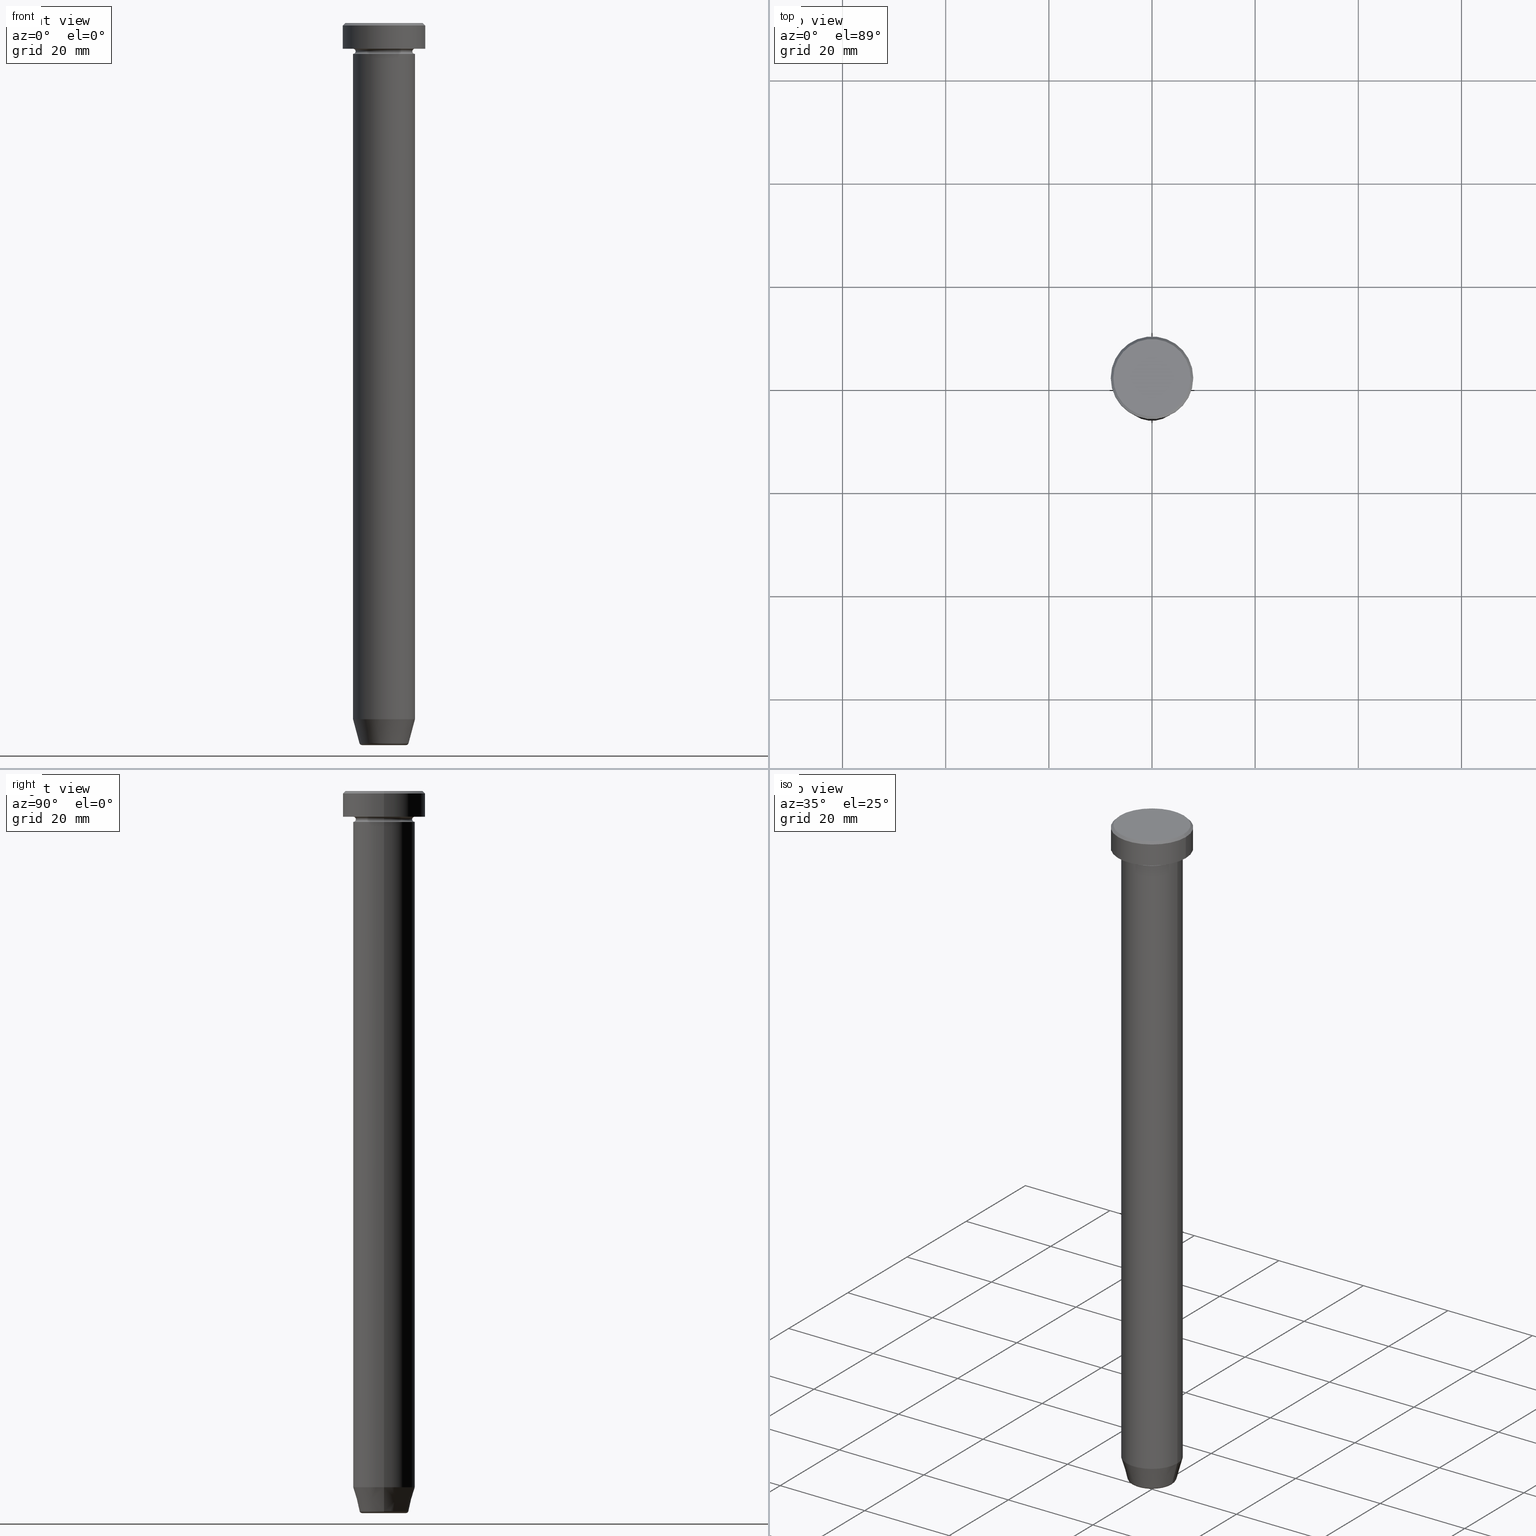
[diagram: canonical four-view strip — front | top / right | iso, engineering-drawing reading convention]
A machine part, canonical four-view strip (front | top / right | iso — engineering-drawing reading convention). The complete STEP part file that produces these views, byte-faithful:
ISO-10303-21;
HEADER;
FILE_DESCRIPTION (( 'STEP AP203' ),
    '1' );
FILE_NAME ('38aa.STEP',
    '2024-01-02T23:14:28',
    ( '' ),
    ( '' ),
    'SwSTEP 2.0',
    'SolidWorks 2019',
    '' );
FILE_SCHEMA (( 'CONFIG_CONTROL_DESIGN' ));
ENDSEC;

DATA;
#1 = EDGE_CURVE ( 'NONE', #560, #157, #570, .T. ) ;
#2 = EDGE_LOOP ( 'NONE', ( #161, #194 ) ) ;
#3 = FACE_OUTER_BOUND ( 'NONE', #116, .T. ) ;
#4 = ORIENTED_EDGE ( 'NONE', *, *, #385, .T. ) ;
#5 = EDGE_LOOP ( 'NONE', ( #254, #345, #223, #71 ) ) ;
#6 = COORDINATED_UNIVERSAL_TIME_OFFSET ( 1, 0, .AHEAD. ) ;
#7 = DIRECTION ( 'NONE',  ( -0.000000000000000000, -0.000000000000000000, 1.000000000000000000 ) ) ;
#8 = DIRECTION ( 'NONE',  ( 1.000000000000000000, 0.000000000000000000, 0.000000000000000000 ) ) ;
#9 = VECTOR ( 'NONE', #465, 1000.000000000000000 ) ;
#10 = AXIS2_PLACEMENT_3D ( 'NONE', #84, #314, #486 ) ;
#11 = DIRECTION ( 'NONE',  ( 1.000000000000000000, 0.000000000000000000, 0.000000000000000000 ) ) ;
#12 = ORIENTED_EDGE ( 'NONE', *, *, #246, .F. ) ;
#13 = CARTESIAN_POINT ( 'NONE',  ( 0.000000000000000000, 0.000000000000000000, -5.000000000000000000 ) ) ;
#14 = UNCERTAINTY_MEASURE_WITH_UNIT (LENGTH_MEASURE( 1.000000000000000082E-05 ), #29, 'distance_accuracy_value', 'NONE');
#15 = EDGE_CURVE ( 'NONE', #295, #478, #149, .T. ) ;
#16 = ORIENTED_EDGE ( 'NONE', *, *, #543, .F. ) ;
#17 = CONICAL_SURFACE ( 'NONE', #54, 7.500000000000003553, 0.7853981633974412846 ) ;
#18 = AXIS2_PLACEMENT_3D ( 'NONE', #178, #184, #130 ) ;
#19 = CARTESIAN_POINT ( 'NONE',  ( -8.000000000000000000, 9.797174393178825657E-16, -0.5000000000000038858 ) ) ;
#20 = APPROVAL ( #411, 'NEUR�EN�' ) ;
#21 = ORIENTED_EDGE ( 'NONE', *, *, #571, .T. ) ;
#22 = CIRCLE ( 'NONE', #259, 8.000000000000000000 ) ;
#23 = ORGANIZATION ( 'NEUR�EN�', 'NEUR�EN�', '' ) ;
#24 = DIRECTION ( 'NONE',  ( 0.000000000000000000, 0.000000000000000000, -1.000000000000000000 ) ) ;
#25 = CARTESIAN_POINT ( 'NONE',  ( 0.000000000000000000, 0.000000000000000000, -5.500000000000000000 ) ) ;
#26 = ADVANCED_FACE ( 'NONE', ( #260 ), #561, .F. ) ;
#27 = CYLINDRICAL_SURFACE ( 'NONE', #91, 8.000000000000000000 ) ;
#28 = ORIENTED_EDGE ( 'NONE', *, *, #533, .F. ) ;
#29 =( LENGTH_UNIT ( ) NAMED_UNIT ( * ) SI_UNIT ( .MILLI., .METRE. ) );
#30 = CYLINDRICAL_SURFACE ( 'NONE', #594, 6.000000000000000000 ) ;
#31 = CIRCLE ( 'NONE', #544, 4.759553456999435994 ) ;
#32 = DIRECTION ( 'NONE',  ( 1.000000000000000000, 0.000000000000000000, 0.000000000000000000 ) ) ;
#33 = CARTESIAN_POINT ( 'NONE',  ( -6.000000000000000000, 7.347880794884119736E-16, -27.00000000000000000 ) ) ;
#34 = APPROVAL_DATE_TIME ( #78, #35 ) ;
#35 = APPROVAL ( #225, 'NEUR�EN�' ) ;
#36 = CARTESIAN_POINT ( 'NONE',  ( 0.000000000000000000, 0.000000000000000000, -139.5000000000000000 ) ) ;
#37 = VERTEX_POINT ( 'NONE', #386 ) ;
#38 = APPROVAL_STATUS ( 'not_yet_approved' ) ;
#39 = CARTESIAN_POINT ( 'NONE',  ( 0.000000000000000000, 0.000000000000000000, -140.0000000000000000 ) ) ;
#40 = CARTESIAN_POINT ( 'NONE',  ( 0.000000000000000000, -2.602085213965210642E-15, -27.00000000000000000 ) ) ;
#41 = ADVANCED_FACE ( 'NONE', ( #343 ), #153, .T. ) ;
#42 = ORIENTED_EDGE ( 'NONE', *, *, #246, .T. ) ;
#43 = CARTESIAN_POINT ( 'NONE',  ( 6.000000000000000000, 7.347880794884119736E-16, -5.500000000000000000 ) ) ;
#44 = AXIS2_PLACEMENT_3D ( 'NONE', #335, #509, #8 ) ;
#45 = DIRECTION ( 'NONE',  ( -0.000000000000000000, -0.000000000000000000, 1.000000000000000000 ) ) ;
#46 = DIRECTION ( 'NONE',  ( 0.000000000000000000, 0.000000000000000000, -1.000000000000000000 ) ) ;
#47 = ADVANCED_FACE ( 'NONE', ( #113 ), #17, .T. ) ;
#48 = APPROVAL_PERSON_ORGANIZATION ( #582, #35, #359 ) ;
#49 = DIRECTION ( 'NONE',  ( 1.000000000000000000, 0.000000000000000000, 0.000000000000000000 ) ) ;
#50 = ORIENTED_EDGE ( 'NONE', *, *, #117, .T. ) ;
#51 = PERSON_AND_ORGANIZATION ( #180, #23 ) ;
#52 = CARTESIAN_POINT ( 'NONE',  ( 0.000000000000000000, 0.000000000000000000, 0.000000000000000000 ) ) ;
#53 = VERTEX_POINT ( 'NONE', #402 ) ;
#54 = AXIS2_PLACEMENT_3D ( 'NONE', #63, #208, #563 ) ;
#55 = AXIS2_PLACEMENT_3D ( 'NONE', #444, #74, #501 ) ;
#56 = ORIENTED_EDGE ( 'NONE', *, *, #93, .T. ) ;
#57 = CARTESIAN_POINT ( 'NONE',  ( 0.000000000000000000, 0.000000000000000000, -5.500000000000000000 ) ) ;
#58 = ORIENTED_EDGE ( 'NONE', *, *, #432, .F. ) ;
#59 = TOROIDAL_SURFACE ( 'NONE', #288, 6.000000000000000000, 0.5000000000000000000 ) ;
#60 = AXIS2_PLACEMENT_3D ( 'NONE', #171, #442, #527 ) ;
#61 = ADVANCED_FACE ( 'NONE', ( #451 ), #339, .F. ) ;
#62 = CARTESIAN_POINT ( 'NONE',  ( -6.000000000000000000, 7.347880794884119736E-16, -135.0000000000000000 ) ) ;
#63 = CARTESIAN_POINT ( 'NONE',  ( 0.000000000000000000, 0.000000000000000000, 0.000000000000000000 ) ) ;
#64 = VERTEX_POINT ( 'NONE', #33 ) ;
#65 = CARTESIAN_POINT ( 'NONE',  ( 6.000000000000000000, 0.000000000000000000, -6.000000000000000000 ) ) ;
#66 = VERTEX_POINT ( 'NONE', #313 ) ;
#67 = ORIENTED_EDGE ( 'NONE', *, *, #291, .T. ) ;
#68 = APPLICATION_PROTOCOL_DEFINITION ( 'international standard', 'config_control_design', 1994, #568 ) ;
#69 = ADVANCED_FACE ( 'NONE', ( #496 ), #160, .T. ) ;
#70 = DIRECTION ( 'NONE',  ( -0.000000000000000000, -0.000000000000000000, 1.000000000000000000 ) ) ;
#71 = ORIENTED_EDGE ( 'NONE', *, *, #458, .F. ) ;
#72 = APPROVAL_PERSON_ORGANIZATION ( #51, #20, #555 ) ;
#73 = DIRECTION ( 'NONE',  ( 1.000000000000000000, 0.000000000000000000, 0.000000000000000000 ) ) ;
#74 = DIRECTION ( 'NONE',  ( 0.000000000000000000, 0.000000000000000000, -1.000000000000000000 ) ) ;
#75 = DIRECTION ( 'NONE',  ( -0.000000000000000000, -0.000000000000000000, 1.000000000000000000 ) ) ;
#76 = DIRECTION ( 'NONE',  ( -0.000000000000000000, -0.000000000000000000, 1.000000000000000000 ) ) ;
#77 = TOROIDAL_SURFACE ( 'NONE', #321, 4.276590543854906556, 0.5000000000000000000 ) ;
#78 = DATE_AND_TIME ( #400, #493 ) ;
#79 = FACE_OUTER_BOUND ( 'NONE', #169, .T. ) ;
#80 = ORIENTED_EDGE ( 'NONE', *, *, #525, .F. ) ;
#81 = AXIS2_PLACEMENT_3D ( 'NONE', #115, #551, #426 ) ;
#82 = ADVANCED_FACE ( 'NONE', ( #526 ), #30, .T. ) ;
#83 = VECTOR ( 'NONE', #513, 999.9999999999998863 ) ;
#84 = CARTESIAN_POINT ( 'NONE',  ( 0.000000000000000000, 0.000000000000000000, -5.000000000000000000 ) ) ;
#85 = APPLICATION_CONTEXT ( 'configuration controlled 3d designs of mechanical parts and assemblies' ) ;
#86 = MANIFOLD_SOLID_BREP ( 'Zaoblit4', #541 ) ;
#87 = CARTESIAN_POINT ( 'NONE',  ( 0.000000000000000000, 0.000000000000000000, -140.0000000000000000 ) ) ;
#88 = DATE_TIME_ROLE ( 'creation_date' ) ;
#89 = CARTESIAN_POINT ( 'NONE',  ( 0.000000000000000000, 6.000000000000000000, -26.99999999999999645 ) ) ;
#90 = ORIENTED_EDGE ( 'NONE', *, *, #177, .T. ) ;
#91 = AXIS2_PLACEMENT_3D ( 'NONE', #396, #76, #268 ) ;
#92 = DIRECTION ( 'NONE',  ( 1.000000000000000000, 0.000000000000000000, 0.000000000000000000 ) ) ;
#93 = EDGE_CURVE ( 'NONE', #504, #295, #487, .T. ) ;
#94 = ORIENTED_EDGE ( 'NONE', *, *, #500, .T. ) ;
#95 = VERTEX_POINT ( 'NONE', #182 ) ;
#96 = CIRCLE ( 'NONE', #505, 6.000000000000000000 ) ;
#97 = CC_DESIGN_APPROVAL ( #20, ( #381 ) ) ;
#98 = CARTESIAN_POINT ( 'NONE',  ( -6.000000000000000000, 0.000000000000000000, -4.999999999999999112 ) ) ;
#99 = DIRECTION ( 'NONE',  ( -0.000000000000000000, -1.000000000000000000, -0.000000000000000000 ) ) ;
#100 = FACE_OUTER_BOUND ( 'NONE', #316, .T. ) ;
#101 = DATE_TIME_ROLE ( 'classification_date' ) ;
#102 = ORIENTED_EDGE ( 'NONE', *, *, #374, .F. ) ;
#103 = CARTESIAN_POINT ( 'NONE',  ( 4.276590543854906556, 0.000000000000000000, -139.5000000000000000 ) ) ;
#104 = CIRCLE ( 'NONE', #273, 6.000000000000000000 ) ;
#105 = ORIENTED_EDGE ( 'NONE', *, *, #564, .F. ) ;
#106 = DIRECTION ( 'NONE',  ( 0.000000000000000000, -1.000000000000000000, 0.000000000000000000 ) ) ;
#107 = ORIENTED_EDGE ( 'NONE', *, *, #581, .F. ) ;
#108 = CARTESIAN_POINT ( 'NONE',  ( 0.000000000000000000, 0.000000000000000000, 0.000000000000000000 ) ) ;
#109 = ORIENTED_EDGE ( 'NONE', *, *, #362, .F. ) ;
#110 = EDGE_CURVE ( 'NONE', #37, #504, #128, .T. ) ;
#111 = EDGE_LOOP ( 'NONE', ( #120, #532 ) ) ;
#112 = DIRECTION ( 'NONE',  ( 0.000000000000000000, 0.000000000000000000, -1.000000000000000000 ) ) ;
#113 = FACE_OUTER_BOUND ( 'NONE', #234, .T. ) ;
#114 = CIRCLE ( 'NONE', #10, 6.000000000000000000 ) ;
#115 = CARTESIAN_POINT ( 'NONE',  ( 0.000000000000000000, 0.000000000000000000, -5.000000000000000000 ) ) ;
#116 = EDGE_LOOP ( 'NONE', ( #407, #42, #585, #538 ) ) ;
#117 = EDGE_CURVE ( 'NONE', #351, #373, #214, .T. ) ;
#118 = CARTESIAN_POINT ( 'NONE',  ( 0.000000000000000000, 0.000000000000000000, 0.000000000000000000 ) ) ;
#119 = DIRECTION ( 'NONE',  ( 1.000000000000000000, 0.000000000000000000, 0.000000000000000000 ) ) ;
#120 = ORIENTED_EDGE ( 'NONE', *, *, #352, .F. ) ;
#121 = PRODUCT ( '38aa', '38aa', '', ( #395 ) ) ;
#122 = DIRECTION ( 'NONE',  ( 1.000000000000000000, 0.000000000000000000, 0.000000000000000000 ) ) ;
#123 = CIRCLE ( 'NONE', #81, 6.000000000000000000 ) ;
#124 = CC_DESIGN_SECURITY_CLASSIFICATION ( #524, ( #381 ) ) ;
#125 = DIRECTION ( 'NONE',  ( 1.000000000000000000, 0.000000000000000000, 0.000000000000000000 ) ) ;
#126 = DIRECTION ( 'NONE',  ( 0.000000000000000000, 0.000000000000000000, -1.000000000000000000 ) ) ;
#127 = ADVANCED_FACE ( 'NONE', ( #360 ), #27, .T. ) ;
#128 = CIRCLE ( 'NONE', #490, 6.000000000000000000 ) ;
#129 = FACE_OUTER_BOUND ( 'NONE', #5, .T. ) ;
#130 = DIRECTION ( 'NONE',  ( 1.000000000000000000, 0.000000000000000000, 0.000000000000000000 ) ) ;
#131 = AXIS2_PLACEMENT_3D ( 'NONE', #233, #590, #192 ) ;
#132 = CIRCLE ( 'NONE', #364, 5.500000000000000000 ) ;
#133 = DATE_AND_TIME ( #431, #565 ) ;
#134 = FACE_OUTER_BOUND ( 'NONE', #249, .T. ) ;
#135 = PERSON_AND_ORGANIZATION_ROLE ( 'design_supplier' ) ;
#136 = ADVANCED_FACE ( 'NONE', ( #579 ), #340, .T. ) ;
#137 = DIRECTION ( 'NONE',  ( 1.000000000000000000, 0.000000000000000000, 0.000000000000000000 ) ) ;
#138 = EDGE_LOOP ( 'NONE', ( #305, #94, #454, #109 ) ) ;
#139 = COORDINATED_UNIVERSAL_TIME_OFFSET ( 1, 0, .AHEAD. ) ;
#140 = PRODUCT_RELATED_PRODUCT_CATEGORY ( 'detail', '', ( #121 ) ) ;
#141 = DIRECTION ( 'NONE',  ( -1.000000000000000000, 0.000000000000000000, -0.000000000000000000 ) ) ;
#142 = ORIENTED_EDGE ( 'NONE', *, *, #232, .T. ) ;
#143 = EDGE_LOOP ( 'NONE', ( #580, #105, #389, #58 ) ) ;
#144 = AXIS2_PLACEMENT_3D ( 'NONE', #337, #377, #304 ) ;
#145 = CARTESIAN_POINT ( 'NONE',  ( -6.000000000000000000, 0.000000000000000000, -5.500000000000000000 ) ) ;
#146 = DIRECTION ( 'NONE',  ( -0.000000000000000000, -0.000000000000000000, 1.000000000000000000 ) ) ;
#147 = ORIENTED_EDGE ( 'NONE', *, *, #405, .F. ) ;
#148 = ADVANCED_FACE ( 'NONE', ( #134 ), #522, .T. ) ;
#149 = CIRCLE ( 'NONE', #269, 6.000000000000000000 ) ;
#150 = CARTESIAN_POINT ( 'NONE',  ( 0.000000000000000000, 8.000000000000000000, -5.000000000000000000 ) ) ;
#151 = CARTESIAN_POINT ( 'NONE',  ( 8.000000000000000000, 0.000000000000000000, -5.000000000000000000 ) ) ;
#152 = AXIS2_PLACEMENT_3D ( 'NONE', #450, #398, #446 ) ;
#153 = CYLINDRICAL_SURFACE ( 'NONE', #44, 6.000000000000000000 ) ;
#154 = ORIENTED_EDGE ( 'NONE', *, *, #291, .F. ) ;
#155 = DIRECTION ( 'NONE',  ( 0.000000000000000000, 0.000000000000000000, -1.000000000000000000 ) ) ;
#156 = ADVANCED_FACE ( 'NONE', ( #318 ), #77, .T. ) ;
#157 = VERTEX_POINT ( 'NONE', #309 ) ;
#158 = ORIENTED_EDGE ( 'NONE', *, *, #533, .T. ) ;
#159 = DIRECTION ( 'NONE',  ( 0.000000000000000000, -0.000000000000000000, 1.000000000000000000 ) ) ;
#160 = CONICAL_SURFACE ( 'NONE', #489, 4.660254037844383745, 0.2617993877991497409 ) ;
#161 = ORIENTED_EDGE ( 'NONE', *, *, #564, .T. ) ;
#162 = CARTESIAN_POINT ( 'NONE',  ( -8.000000000000000000, 9.797174393178825657E-16, -5.000000000000000000 ) ) ;
#163 = AXIS2_PLACEMENT_3D ( 'NONE', #331, #593, #599 ) ;
#164 = ORIENTED_EDGE ( 'NONE', *, *, #325, .T. ) ;
#165 = AXIS2_PLACEMENT_3D ( 'NONE', #118, #483, #32 ) ;
#166 = EDGE_CURVE ( 'NONE', #512, #517, #363, .T. ) ;
#167 = ORIENTED_EDGE ( 'NONE', *, *, #508, .F. ) ;
#168 = DIRECTION ( 'NONE',  ( -0.000000000000000000, -0.000000000000000000, 1.000000000000000000 ) ) ;
#169 = EDGE_LOOP ( 'NONE', ( #287, #472, #463, #514 ) ) ;
#170 = CC_DESIGN_DATE_AND_TIME_ASSIGNMENT ( #133, #101, ( #524 ) ) ;
#171 = CARTESIAN_POINT ( 'NONE',  ( 0.000000000000000000, 0.000000000000000000, -5.500000000000000000 ) ) ;
#172 = DIRECTION ( 'NONE',  ( -0.000000000000000000, -0.000000000000000000, 1.000000000000000000 ) ) ;
#173 = DIRECTION ( 'NONE',  ( -0.000000000000000000, -0.000000000000000000, 1.000000000000000000 ) ) ;
#174 = CIRCLE ( 'NONE', #144, 6.000000000000000000 ) ;
#175 = CC_DESIGN_APPROVAL ( #35, ( #256 ) ) ;
#176 = COORDINATED_UNIVERSAL_TIME_OFFSET ( 1, 0, .AHEAD. ) ;
#177 = EDGE_CURVE ( 'NONE', #157, #203, #573, .T. ) ;
#178 = CARTESIAN_POINT ( 'NONE',  ( 0.000000000000000000, 0.000000000000000000, 0.000000000000000000 ) ) ;
#179 = VERTEX_POINT ( 'NONE', #536 ) ;
#180 = PERSON ( 'NEUR�EN�', 'NEUR�EN�', 'NEUR�EN�', ('NEUR�EN�'), ('NEUR�EN�'), ('NEUR�EN�') ) ;
#181 = VERTEX_POINT ( 'NONE', #356 ) ;
#182 = CARTESIAN_POINT ( 'NONE',  ( 6.000000000000000000, 7.347880794884119736E-16, -4.999999999999999112 ) ) ;
#183 = CARTESIAN_POINT ( 'NONE',  ( 8.000000000000000000, 0.000000000000000000, 0.000000000000000000 ) ) ;
#184 = DIRECTION ( 'NONE',  ( -0.000000000000000000, -0.000000000000000000, 1.000000000000000000 ) ) ;
#185 = ADVANCED_FACE ( 'NONE', ( #494 ), #528, .T. ) ;
#186 = CIRCLE ( 'NONE', #300, 6.000000000000000000 ) ;
#187 = LOCAL_TIME ( 0, 14, 28.00000000000000000, #176 ) ;
#188 = APPROVAL_DATE_TIME ( #244, #556 ) ;
#189 = CARTESIAN_POINT ( 'NONE',  ( 0.000000000000000000, 0.000000000000000000, -27.00000000000000000 ) ) ;
#190 = ORIENTED_EDGE ( 'NONE', *, *, #166, .F. ) ;
#191 = PERSON_AND_ORGANIZATION_ROLE ( 'creator' ) ;
#192 = DIRECTION ( 'NONE',  ( 1.000000000000000000, 0.000000000000000000, 0.000000000000000000 ) ) ;
#193 = CARTESIAN_POINT ( 'NONE',  ( 4.660254037844383745, 0.000000000000000000, -140.0000000000000000 ) ) ;
#194 = ORIENTED_EDGE ( 'NONE', *, *, #204, .T. ) ;
#195 = CIRCLE ( 'NONE', #443, 7.500000000000003553 ) ;
#196 = CARTESIAN_POINT ( 'NONE',  ( 8.000000000000000000, 0.000000000000000000, -0.5000000000000038858 ) ) ;
#197 = ADVANCED_FACE ( 'NONE', ( #79 ), #521, .T. ) ;
#198 = DIRECTION ( 'NONE',  ( 1.000000000000000000, 0.000000000000000000, 0.000000000000000000 ) ) ;
#199 = DATE_AND_TIME ( #296, #506 ) ;
#200 = DIRECTION ( 'NONE',  ( 0.000000000000000000, -0.000000000000000000, 1.000000000000000000 ) ) ;
#201 = CIRCLE ( 'NONE', #574, 4.276590543854906556 ) ;
#202 = ORIENTED_EDGE ( 'NONE', *, *, #500, .F. ) ;
#203 = VERTEX_POINT ( 'NONE', #196 ) ;
#204 = EDGE_CURVE ( 'NONE', #351, #181, #201, .T. ) ;
#205 = CARTESIAN_POINT ( 'NONE',  ( 6.000000000000000000, 0.000000000000000000, -27.00000000000000000 ) ) ;
#206 = CIRCLE ( 'NONE', #523, 0.5000000000000004441 ) ;
#207 = CC_DESIGN_APPROVAL ( #556, ( #524 ) ) ;
#208 = DIRECTION ( 'NONE',  ( 0.000000000000000000, 0.000000000000000000, -1.000000000000000000 ) ) ;
#209 = EDGE_LOOP ( 'NONE', ( #586, #437 ) ) ;
#210 = CARTESIAN_POINT ( 'NONE',  ( 0.000000000000000000, 0.000000000000000000, -27.00000000000000000 ) ) ;
#211 = DIRECTION ( 'NONE',  ( 1.000000000000000000, 0.000000000000000000, 0.000000000000000000 ) ) ;
#212 = CLOSED_SHELL ( 'NONE', ( #47, #394, #592, #82, #127, #185, #467, #148, #265, #41, #61, #26, #197 ) ) ;
#213 = ORIENTED_EDGE ( 'NONE', *, *, #367, .T. ) ;
#214 = CIRCLE ( 'NONE', #270, 0.4999999999999995559 ) ;
#215 = PLANE ( 'NONE',  #301 ) ;
#216 = ORIENTED_EDGE ( 'NONE', *, *, #362, .T. ) ;
#217 = CIRCLE ( 'NONE', #576, 0.5000000000000004441 ) ;
#218 = EDGE_LOOP ( 'NONE', ( #16, #107, #448, #298 ) ) ;
#219 = DIRECTION ( 'NONE',  ( -0.000000000000000000, -0.000000000000000000, 1.000000000000000000 ) ) ;
#220 = LINE ( 'NONE', #183, #392 ) ;
#221 = DIRECTION ( 'NONE',  ( -0.000000000000000000, -0.000000000000000000, 1.000000000000000000 ) ) ;
#222 = VERTEX_POINT ( 'NONE', #98 ) ;
#223 = ORIENTED_EDGE ( 'NONE', *, *, #405, .T. ) ;
#224 = ADVANCED_FACE ( 'NONE', ( #503 ), #554, .T. ) ;
#225 = APPROVAL_STATUS ( 'not_yet_approved' ) ;
#226 = AXIS2_PLACEMENT_3D ( 'NONE', #40, #46, #141 ) ;
#227 = VECTOR ( 'NONE', #572, 1000.000000000000000 ) ;
#228 = DATE_AND_TIME ( #355, #187 ) ;
#229 = DIRECTION ( 'NONE',  ( 1.000000000000000000, 0.000000000000000000, 0.000000000000000000 ) ) ;
#230 = DIRECTION ( 'NONE',  ( 0.000000000000000000, 0.000000000000000000, -1.000000000000000000 ) ) ;
#231 = DIRECTION ( 'NONE',  ( 0.7071067811865425767, 8.659560562354873694E-17, -0.7071067811865525687 ) ) ;
#232 = EDGE_CURVE ( 'NONE', #348, #222, #515, .T. ) ;
#233 = CARTESIAN_POINT ( 'NONE',  ( 0.000000000000000000, 0.000000000000000000, 0.000000000000000000 ) ) ;
#234 = EDGE_LOOP ( 'NONE', ( #591, #90, #167, #283 ) ) ;
#235 = CARTESIAN_POINT ( 'NONE',  ( 5.500000000000000000, 0.000000000000000000, -5.500000000000000000 ) ) ;
#236 = ORIENTED_EDGE ( 'NONE', *, *, #385, .F. ) ;
#237 = DIRECTION ( 'NONE',  ( -1.000000000000000000, 0.000000000000000000, 0.000000000000000000 ) ) ;
#238 = AXIS2_PLACEMENT_3D ( 'NONE', #89, #126, #491 ) ;
#239 = EDGE_CURVE ( 'NONE', #397, #53, #104, .T. ) ;
#240 = CARTESIAN_POINT ( 'NONE',  ( -4.276590543854906556, 5.533042413640414434E-16, -140.0000000000000000 ) ) ;
#241 = CIRCLE ( 'NONE', #289, 8.000000000000000000 ) ;
#242 = DIRECTION ( 'NONE',  ( -0.000000000000000000, -0.000000000000000000, 1.000000000000000000 ) ) ;
#243 = EDGE_LOOP ( 'NONE', ( #459, #50, #545, #553 ) ) ;
#244 = DATE_AND_TIME ( #415, #274 ) ;
#245 = DIRECTION ( 'NONE',  ( -0.2588190451025210170, 3.169619151431768639E-17, 0.9659258262890680902 ) ) ;
#246 = EDGE_CURVE ( 'NONE', #294, #95, #206, .T. ) ;
#247 = PERSON_AND_ORGANIZATION_ROLE ( 'classification_officer' ) ;
#248 = DIRECTION ( 'NONE',  ( 1.000000000000000000, 0.000000000000000000, 0.000000000000000000 ) ) ;
#249 = EDGE_LOOP ( 'NONE', ( #190, #67, #158, #307 ) ) ;
#250 = CC_DESIGN_PERSON_AND_ORGANIZATION_ASSIGNMENT ( #323, #191, ( #381 ) ) ;
#251 = CARTESIAN_POINT ( 'NONE',  ( 0.000000000000000000, 0.000000000000000000, -5.500000000000000000 ) ) ;
#252 = EDGE_LOOP ( 'NONE', ( #567, #350, #383, #28 ) ) ;
#253 = CARTESIAN_POINT ( 'NONE',  ( 0.000000000000000000, 0.000000000000000000, -0.5000000000000038858 ) ) ;
#254 = ORIENTED_EDGE ( 'NONE', *, *, #449, .F. ) ;
#255 = DIRECTION ( 'NONE',  ( 0.000000000000000000, -1.000000000000000000, 0.000000000000000000 ) ) ;
#256 = PRODUCT_DEFINITION ( 'NEZN�M�', '', #381, #267 ) ;
#257 = DIRECTION ( 'NONE',  ( -0.000000000000000000, -0.000000000000000000, 1.000000000000000000 ) ) ;
#258 = AXIS2_PLACEMENT_3D ( 'NONE', #315, #531, #569 ) ;
#259 = AXIS2_PLACEMENT_3D ( 'NONE', #13, #382, #11 ) ;
#260 = FACE_OUTER_BOUND ( 'NONE', #430, .T. ) ;
#261 = CIRCLE ( 'NONE', #311, 5.500000000000000000 ) ;
#262 = DIRECTION ( 'NONE',  ( 1.000000000000000000, 0.000000000000000000, 0.000000000000000000 ) ) ;
#263 = PRODUCT_DEFINITION_SHAPE ( 'NONE', 'NONE',  #256 ) ;
#264 = CARTESIAN_POINT ( 'NONE',  ( 0.000000000000000000, 0.000000000000000000, 0.000000000000000000 ) ) ;
#265 = ADVANCED_FACE ( 'NONE', ( #371, #417 ), #285, .T. ) ;
#266 = CARTESIAN_POINT ( 'NONE',  ( 0.000000000000000000, 0.000000000000000000, -140.0000000000000000 ) ) ;
#267 = DESIGN_CONTEXT ( 'detailed design', #85, 'design' ) ;
#268 = DIRECTION ( 'NONE',  ( 1.000000000000000000, 0.000000000000000000, 0.000000000000000000 ) ) ;
#269 = AXIS2_PLACEMENT_3D ( 'NONE', #440, #70, #475 ) ;
#270 = AXIS2_PLACEMENT_3D ( 'NONE', #410, #445, #276 ) ;
#271 = ORIENTED_EDGE ( 'NONE', *, *, #525, .T. ) ;
#272 = DIRECTION ( 'NONE',  ( -0.000000000000000000, -0.000000000000000000, 1.000000000000000000 ) ) ;
#273 = AXIS2_PLACEMENT_3D ( 'NONE', #366, #498, #423 ) ;
#274 = LOCAL_TIME ( 0, 14, 28.00000000000000000, #139 ) ;
#275 = ADVANCED_FACE ( 'NONE', ( #461 ), #548, .F. ) ;
#276 = DIRECTION ( 'NONE',  ( -1.000000000000000000, 1.224646799147353454E-16, 0.000000000000000000 ) ) ;
#277 = DIRECTION ( 'NONE',  ( -1.224646799147353207E-16, 1.000000000000000000, 0.000000000000000000 ) ) ;
#278 = CARTESIAN_POINT ( 'NONE',  ( -5.500000000000000000, 7.041719095097280880E-16, -5.500000000000000000 ) ) ;
#279 = AXIS2_PLACEMENT_3D ( 'NONE', #150, #539, #464 ) ;
#280 = AXIS2_PLACEMENT_3D ( 'NONE', #253, #387, #562 ) ;
#281 = ORIENTED_EDGE ( 'NONE', *, *, #352, .T. ) ;
#282 = CYLINDRICAL_SURFACE ( 'NONE', #131, 6.000000000000000000 ) ;
#283 = ORIENTED_EDGE ( 'NONE', *, *, #495, .F. ) ;
#284 = ADVANCED_FACE ( 'NONE', ( #100 ), #320, .T. ) ;
#285 = PLANE ( 'NONE',  #279 ) ;
#286 = DIRECTION ( 'NONE',  ( -1.000000000000000000, -1.224646799147351482E-16, 0.000000000000000000 ) ) ;
#287 = ORIENTED_EDGE ( 'NONE', *, *, #177, .F. ) ;
#288 = AXIS2_PLACEMENT_3D ( 'NONE', #57, #155, #507 ) ;
#289 = AXIS2_PLACEMENT_3D ( 'NONE', #578, #24, #306 ) ;
#290 = DIRECTION ( 'NONE',  ( 0.000000000000000000, 0.000000000000000000, -1.000000000000000000 ) ) ;
#291 = EDGE_CURVE ( 'NONE', #512, #378, #421, .T. ) ;
#292 = ADVANCED_BREP_SHAPE_REPRESENTATION ( '38aa', ( #479, #86, #165 ), #422 ) ;
#293 = FACE_OUTER_BOUND ( 'NONE', #209, .T. ) ;
#294 = VERTEX_POINT ( 'NONE', #235 ) ;
#295 = VERTEX_POINT ( 'NONE', #497 ) ;
#296 = CALENDAR_DATE ( 2024, 3, 1 ) ;
#297 = LINE ( 'NONE', #428, #452 ) ;
#298 = ORIENTED_EDGE ( 'NONE', *, *, #239, .T. ) ;
#299 = DIRECTION ( 'NONE',  ( -0.000000000000000000, -0.000000000000000000, 1.000000000000000000 ) ) ;
#300 = AXIS2_PLACEMENT_3D ( 'NONE', #189, #537, #92 ) ;
#301 = AXIS2_PLACEMENT_3D ( 'NONE', #434, #159, #557 ) ;
#302 = EDGE_LOOP ( 'NONE', ( #4, #418 ) ) ;
#303 = CC_DESIGN_PERSON_AND_ORGANIZATION_ASSIGNMENT ( #408, #492, ( #121 ) ) ;
#304 = DIRECTION ( 'NONE',  ( 1.000000000000000000, 0.000000000000000000, 0.000000000000000000 ) ) ;
#305 = ORIENTED_EDGE ( 'NONE', *, *, #330, .T. ) ;
#306 = DIRECTION ( 'NONE',  ( 1.000000000000000000, 0.000000000000000000, 0.000000000000000000 ) ) ;
#307 = ORIENTED_EDGE ( 'NONE', *, *, #550, .T. ) ;
#308 = ADVANCED_FACE ( 'NONE', ( #375 ), #282, .T. ) ;
#309 = CARTESIAN_POINT ( 'NONE',  ( 7.500000000000003553, 9.491012693391989759E-16, 0.000000000000000000 ) ) ;
#310 = EDGE_LOOP ( 'NONE', ( #202, #341, #216, #425 ) ) ;
#311 = AXIS2_PLACEMENT_3D ( 'NONE', #353, #75, #262 ) ;
#312 = APPLICATION_PROTOCOL_DEFINITION ( 'international standard', 'config_control_design', 1994, #85 ) ;
#313 = CARTESIAN_POINT ( 'NONE',  ( 4.759553456999435994, 0.000000000000000000, -139.6294095225512990 ) ) ;
#314 = DIRECTION ( 'NONE',  ( -0.000000000000000000, -0.000000000000000000, 1.000000000000000000 ) ) ;
#315 = CARTESIAN_POINT ( 'NONE',  ( 0.000000000000000000, 0.000000000000000000, -139.5000000000000000 ) ) ;
#316 = EDGE_LOOP ( 'NONE', ( #369, #213, #271, #469 ) ) ;
#317 = COORDINATED_UNIVERSAL_TIME_OFFSET ( 1, 0, .AHEAD. ) ;
#318 = FACE_OUTER_BOUND ( 'NONE', #143, .T. ) ;
#319 = DIRECTION ( 'NONE',  ( -0.000000000000000000, -0.000000000000000000, 1.000000000000000000 ) ) ;
#320 = CYLINDRICAL_SURFACE ( 'NONE', #401, 6.000000000000000000 ) ;
#321 = AXIS2_PLACEMENT_3D ( 'NONE', #36, #221, #122 ) ;
#322 = ORIENTED_EDGE ( 'NONE', *, *, #473, .F. ) ;
#323 = PERSON_AND_ORGANIZATION ( #180, #23 ) ;
#324 = LINE ( 'NONE', #412, #9 ) ;
#325 = EDGE_CURVE ( 'NONE', #64, #53, #324, .T. ) ;
#326 = AXIS2_PLACEMENT_3D ( 'NONE', #329, #146, #588 ) ;
#327 = AXIS2_PLACEMENT_3D ( 'NONE', #103, #255, #290 ) ;
#328 = CARTESIAN_POINT ( 'NONE',  ( 0.000000000000000000, 0.000000000000000000, -135.0000000000000000 ) ) ;
#329 = CARTESIAN_POINT ( 'NONE',  ( 0.000000000000000000, 0.000000000000000000, -140.0000000000000000 ) ) ;
#330 = EDGE_CURVE ( 'NONE', #66, #373, #31, .T. ) ;
#331 = CARTESIAN_POINT ( 'NONE',  ( 0.000000000000000000, 0.000000000000000000, -5.000000000000000000 ) ) ;
#332 = AXIS2_PLACEMENT_3D ( 'NONE', #436, #299, #511 ) ;
#333 = VECTOR ( 'NONE', #245, 1000.000000000000114 ) ;
#334 = DIRECTION ( 'NONE',  ( 1.000000000000000000, 0.000000000000000000, 0.000000000000000000 ) ) ;
#335 = CARTESIAN_POINT ( 'NONE',  ( 0.000000000000000000, 0.000000000000000000, 0.000000000000000000 ) ) ;
#336 = SHAPE_DEFINITION_REPRESENTATION ( #263, #292 ) ;
#337 = CARTESIAN_POINT ( 'NONE',  ( 0.000000000000000000, 0.000000000000000000, -6.000000000000000000 ) ) ;
#338 = EDGE_LOOP ( 'NONE', ( #357, #56, #236, #80 ) ) ;
#339 = TOROIDAL_SURFACE ( 'NONE', #529, 6.000000000000000000, 0.5000000000000000000 ) ;
#340 = TOROIDAL_SURFACE ( 'NONE', #258, 4.276590543854906556, 0.5000000000000000000 ) ;
#341 = ORIENTED_EDGE ( 'NONE', *, *, #432, .T. ) ;
#342 = CARTESIAN_POINT ( 'NONE',  ( -7.500000000000003553, 0.000000000000000000, 0.000000000000000000 ) ) ;
#343 = FACE_OUTER_BOUND ( 'NONE', #589, .T. ) ;
#344 = EDGE_CURVE ( 'NONE', #64, #179, #186, .T. ) ;
#345 = ORIENTED_EDGE ( 'NONE', *, *, #543, .T. ) ;
#346 = AXIS2_PLACEMENT_3D ( 'NONE', #416, #420, #137 ) ;
#347 = LINE ( 'NONE', #342, #83 ) ;
#348 = VERTEX_POINT ( 'NONE', #278 ) ;
#349 = CARTESIAN_POINT ( 'NONE',  ( 6.000000000000000000, 0.000000000000000000, 0.000000000000000000 ) ) ;
#350 = ORIENTED_EDGE ( 'NONE', *, *, #166, .T. ) ;
#351 = VERTEX_POINT ( 'NONE', #240 ) ;
#352 = EDGE_CURVE ( 'NONE', #179, #64, #380, .T. ) ;
#353 = CARTESIAN_POINT ( 'NONE',  ( 0.000000000000000000, 0.000000000000000000, -5.500000000000000000 ) ) ;
#354 = DIRECTION ( 'NONE',  ( -0.000000000000000000, -0.000000000000000000, 1.000000000000000000 ) ) ;
#355 = CALENDAR_DATE ( 2024, 3, 1 ) ;
#356 = CARTESIAN_POINT ( 'NONE',  ( 4.276590543854906556, 0.000000000000000000, -140.0000000000000000 ) ) ;
#357 = ORIENTED_EDGE ( 'NONE', *, *, #110, .T. ) ;
#358 = ORIENTED_EDGE ( 'NONE', *, *, #239, .F. ) ;
#359 = APPROVAL_ROLE ( '' ) ;
#360 = FACE_OUTER_BOUND ( 'NONE', #252, .T. ) ;
#361 = VECTOR ( 'NONE', #231, 999.9999999999998863 ) ;
#362 = EDGE_CURVE ( 'NONE', #66, #37, #368, .T. ) ;
#363 = LINE ( 'NONE', #399, #419 ) ;
#364 = AXIS2_PLACEMENT_3D ( 'NONE', #251, #391, #211 ) ;
#365 = APPROVAL_DATE_TIME ( #199, #20 ) ;
#366 = CARTESIAN_POINT ( 'NONE',  ( 0.000000000000000000, 0.000000000000000000, -6.000000000000000000 ) ) ;
#367 = EDGE_CURVE ( 'NONE', #504, #37, #96, .T. ) ;
#368 = LINE ( 'NONE', #193, #597 ) ;
#369 = ORIENTED_EDGE ( 'NONE', *, *, #93, .F. ) ;
#370 = AXIS2_PLACEMENT_3D ( 'NONE', #520, #257, #119 ) ;
#371 = FACE_BOUND ( 'NONE', #393, .T. ) ;
#372 = DIRECTION ( 'NONE',  ( 0.000000000000000000, 0.000000000000000000, -1.000000000000000000 ) ) ;
#373 = VERTEX_POINT ( 'NONE', #474 ) ;
#374 = EDGE_CURVE ( 'NONE', #95, #222, #123, .T. ) ;
#375 = FACE_OUTER_BOUND ( 'NONE', #338, .T. ) ;
#376 = PERSON_AND_ORGANIZATION ( #180, #23 ) ;
#377 = DIRECTION ( 'NONE',  ( -0.000000000000000000, -0.000000000000000000, 1.000000000000000000 ) ) ;
#378 = VERTEX_POINT ( 'NONE', #151 ) ;
#379 = APPROVAL_ROLE ( '' ) ;
#380 = CIRCLE ( 'NONE', #346, 6.000000000000000000 ) ;
#381 = PRODUCT_DEFINITION_FORMATION_WITH_SPECIFIED_SOURCE ( 'LIBOVOLN�', '', #121, .NOT_KNOWN. ) ;
#382 = DIRECTION ( 'NONE',  ( -0.000000000000000000, -0.000000000000000000, 1.000000000000000000 ) ) ;
#383 = ORIENTED_EDGE ( 'NONE', *, *, #508, .T. ) ;
#384 = CARTESIAN_POINT ( 'NONE',  ( 6.000000000000000000, 0.000000000000000000, -5.500000000000000000 ) ) ;
#385 = EDGE_CURVE ( 'NONE', #478, #295, #390, .T. ) ;
#386 = CARTESIAN_POINT ( 'NONE',  ( 6.000000000000000000, 0.000000000000000000, -135.0000000000000000 ) ) ;
#387 = DIRECTION ( 'NONE',  ( 0.000000000000000000, 0.000000000000000000, -1.000000000000000000 ) ) ;
#388 = CARTESIAN_POINT ( 'NONE',  ( 0.000000000000000000, 0.000000000000000000, -5.500000000000000000 ) ) ;
#389 = ORIENTED_EDGE ( 'NONE', *, *, #488, .T. ) ;
#390 = CIRCLE ( 'NONE', #534, 6.000000000000000000 ) ;
#391 = DIRECTION ( 'NONE',  ( -0.000000000000000000, -0.000000000000000000, 1.000000000000000000 ) ) ;
#392 = VECTOR ( 'NONE', #172, 1000.000000000000000 ) ;
#393 = EDGE_LOOP ( 'NONE', ( #21, #558 ) ) ;
#394 = ADVANCED_FACE ( 'NONE', ( #3 ), #59, .F. ) ;
#395 = MECHANICAL_CONTEXT ( 'NONE', #568, 'mechanical' ) ;
#396 = CARTESIAN_POINT ( 'NONE',  ( 0.000000000000000000, 0.000000000000000000, 0.000000000000000000 ) ) ;
#397 = VERTEX_POINT ( 'NONE', #65 ) ;
#398 = DIRECTION ( 'NONE',  ( 1.224646799147353207E-16, 1.000000000000000000, 0.000000000000000000 ) ) ;
#399 = CARTESIAN_POINT ( 'NONE',  ( -8.000000000000000000, 9.797174393178825657E-16, 0.000000000000000000 ) ) ;
#400 = CALENDAR_DATE ( 2024, 3, 1 ) ;
#401 = AXIS2_PLACEMENT_3D ( 'NONE', #468, #242, #198 ) ;
#402 = CARTESIAN_POINT ( 'NONE',  ( -6.000000000000000000, 7.347880794884119736E-16, -6.000000000000000000 ) ) ;
#403 = AXIS2_PLACEMENT_3D ( 'NONE', #52, #200, #248 ) ;
#404 =( NAMED_UNIT ( * ) PLANE_ANGLE_UNIT ( ) SI_UNIT ( $, .RADIAN. ) );
#405 = EDGE_CURVE ( 'NONE', #53, #397, #174, .T. ) ;
#406 = DIRECTION ( 'NONE',  ( 1.000000000000000000, 0.000000000000000000, 0.000000000000000000 ) ) ;
#407 = ORIENTED_EDGE ( 'NONE', *, *, #449, .T. ) ;
#408 = PERSON_AND_ORGANIZATION ( #180, #23 ) ;
#409 = ORIENTED_EDGE ( 'NONE', *, *, #473, .T. ) ;
#410 = CARTESIAN_POINT ( 'NONE',  ( -4.276590543854906556, 5.237312920795749993E-16, -139.5000000000000000 ) ) ;
#411 = APPROVAL_STATUS ( 'not_yet_approved' ) ;
#412 = CARTESIAN_POINT ( 'NONE',  ( -6.000000000000000000, 7.347880794884119736E-16, 0.000000000000000000 ) ) ;
#413 = APPROVAL_PERSON_ORGANIZATION ( #376, #556, #379 ) ;
#414 = EDGE_CURVE ( 'NONE', #378, #512, #22, .T. ) ;
#415 = CALENDAR_DATE ( 2024, 3, 1 ) ;
#416 = CARTESIAN_POINT ( 'NONE',  ( 0.000000000000000000, 0.000000000000000000, -27.00000000000000000 ) ) ;
#417 = FACE_OUTER_BOUND ( 'NONE', #435, .T. ) ;
#418 = ORIENTED_EDGE ( 'NONE', *, *, #15, .T. ) ;
#419 = VECTOR ( 'NONE', #319, 1000.000000000000000 ) ;
#420 = DIRECTION ( 'NONE',  ( -0.000000000000000000, -0.000000000000000000, 1.000000000000000000 ) ) ;
#421 = CIRCLE ( 'NONE', #163, 8.000000000000000000 ) ;
#422 =( GEOMETRIC_REPRESENTATION_CONTEXT ( 3 ) GLOBAL_UNCERTAINTY_ASSIGNED_CONTEXT ( ( #14 ) ) GLOBAL_UNIT_ASSIGNED_CONTEXT ( ( #29, #404, #453 ) ) REPRESENTATION_CONTEXT ( 'NONE', 'WORKASPACE' ) );
#423 = DIRECTION ( 'NONE',  ( 1.000000000000000000, 0.000000000000000000, 0.000000000000000000 ) ) ;
#424 = CC_DESIGN_DATE_AND_TIME_ASSIGNMENT ( #228, #88, ( #256 ) ) ;
#425 = ORIENTED_EDGE ( 'NONE', *, *, #367, .F. ) ;
#426 = DIRECTION ( 'NONE',  ( -1.000000000000000000, 0.000000000000000000, 0.000000000000000000 ) ) ;
#427 = PERSON_AND_ORGANIZATION ( #180, #23 ) ;
#428 = CARTESIAN_POINT ( 'NONE',  ( 6.000000000000000000, 0.000000000000000000, 0.000000000000000000 ) ) ;
#429 = DIRECTION ( 'NONE',  ( -1.000000000000000000, 0.000000000000000000, 0.000000000000000000 ) ) ;
#430 = EDGE_LOOP ( 'NONE', ( #12, #482, #142, #102 ) ) ;
#431 = CALENDAR_DATE ( 2024, 3, 1 ) ;
#432 = EDGE_CURVE ( 'NONE', #373, #66, #587, .T. ) ;
#433 = AXIS2_PLACEMENT_3D ( 'NONE', #266, #230, #73 ) ;
#434 = CARTESIAN_POINT ( 'NONE',  ( 0.000000000000000000, 1.102182119232618069E-14, -140.0000000000000000 ) ) ;
#435 = EDGE_LOOP ( 'NONE', ( #484, #154 ) ) ;
#436 = CARTESIAN_POINT ( 'NONE',  ( 0.000000000000000000, 0.000000000000000000, -139.6294095225512990 ) ) ;
#437 = ORIENTED_EDGE ( 'NONE', *, *, #439, .T. ) ;
#438 = CARTESIAN_POINT ( 'NONE',  ( -4.660254037844383745, 5.707165190659652868E-16, -140.0000000000000000 ) ) ;
#439 = EDGE_CURVE ( 'NONE', #157, #560, #195, .T. ) ;
#440 = CARTESIAN_POINT ( 'NONE',  ( 0.000000000000000000, 0.000000000000000000, -27.00000000000000000 ) ) ;
#441 = AXIS2_PLACEMENT_3D ( 'NONE', #145, #99, #457 ) ;
#442 = DIRECTION ( 'NONE',  ( -0.000000000000000000, -0.000000000000000000, 1.000000000000000000 ) ) ;
#443 = AXIS2_PLACEMENT_3D ( 'NONE', #108, #168, #49 ) ;
#444 = CARTESIAN_POINT ( 'NONE',  ( 0.000000000000000000, 0.000000000000000000, 0.000000000000000000 ) ) ;
#445 = DIRECTION ( 'NONE',  ( 1.224646799147353207E-16, 1.000000000000000000, 0.000000000000000000 ) ) ;
#446 = DIRECTION ( 'NONE',  ( -1.000000000000000000, 1.224646799147351482E-16, 0.000000000000000000 ) ) ;
#447 = DIRECTION ( 'NONE',  ( -0.000000000000000000, -0.000000000000000000, 1.000000000000000000 ) ) ;
#448 = ORIENTED_EDGE ( 'NONE', *, *, #458, .T. ) ;
#449 = EDGE_CURVE ( 'NONE', #348, #294, #132, .T. ) ;
#450 = CARTESIAN_POINT ( 'NONE',  ( -6.000000000000000000, 7.347880794884119736E-16, -5.500000000000000000 ) ) ;
#451 = FACE_OUTER_BOUND ( 'NONE', #218, .T. ) ;
#452 = VECTOR ( 'NONE', #7, 1000.000000000000000 ) ;
#453 =( NAMED_UNIT ( * ) SI_UNIT ( $, .STERADIAN. ) SOLID_ANGLE_UNIT ( ) );
#454 = ORIENTED_EDGE ( 'NONE', *, *, #110, .F. ) ;
#455 = CARTESIAN_POINT ( 'NONE',  ( -6.000000000000000000, 7.347880794884119736E-16, 0.000000000000000000 ) ) ;
#456 = COORDINATED_UNIVERSAL_TIME_OFFSET ( 1, 0, .AHEAD. ) ;
#457 = DIRECTION ( 'NONE',  ( 0.000000000000000000, 0.000000000000000000, -1.000000000000000000 ) ) ;
#458 = EDGE_CURVE ( 'NONE', #294, #397, #217, .T. ) ;
#459 = ORIENTED_EDGE ( 'NONE', *, *, #204, .F. ) ;
#460 = SECURITY_CLASSIFICATION_LEVEL ( 'unclassified' ) ;
#461 = FACE_OUTER_BOUND ( 'NONE', #302, .T. ) ;
#462 = CIRCLE ( 'NONE', #327, 0.5000000000000004441 ) ;
#463 = ORIENTED_EDGE ( 'NONE', *, *, #495, .T. ) ;
#464 = DIRECTION ( 'NONE',  ( -1.000000000000000000, 0.000000000000000000, -0.000000000000000000 ) ) ;
#465 = DIRECTION ( 'NONE',  ( -0.000000000000000000, -0.000000000000000000, 1.000000000000000000 ) ) ;
#466 = ORIENTED_EDGE ( 'NONE', *, *, #344, .T. ) ;
#467 = ADVANCED_FACE ( 'NONE', ( #293 ), #471, .T. ) ;
#468 = CARTESIAN_POINT ( 'NONE',  ( 0.000000000000000000, 0.000000000000000000, 0.000000000000000000 ) ) ;
#469 = ORIENTED_EDGE ( 'NONE', *, *, #15, .F. ) ;
#470 = CIRCLE ( 'NONE', #280, 8.000000000000000000 ) ;
#471 = PLANE ( 'NONE',  #403 ) ;
#472 = ORIENTED_EDGE ( 'NONE', *, *, #1, .F. ) ;
#473 = EDGE_CURVE ( 'NONE', #179, #397, #297, .T. ) ;
#474 = CARTESIAN_POINT ( 'NONE',  ( -4.759553456999435994, 6.588326350684600291E-16, -139.6294095225512990 ) ) ;
#475 = DIRECTION ( 'NONE',  ( 1.000000000000000000, 0.000000000000000000, 0.000000000000000000 ) ) ;
#476 = CIRCLE ( 'NONE', #433, 4.276590543854906556 ) ;
#477 = LINE ( 'NONE', #438, #333 ) ;
#478 = VERTEX_POINT ( 'NONE', #205 ) ;
#479 = MANIFOLD_SOLID_BREP ( 'Zkosen�1', #212 ) ;
#480 = ADVANCED_FACE ( 'NONE', ( #481 ), #215, .F. ) ;
#481 = FACE_OUTER_BOUND ( 'NONE', #2, .T. ) ;
#482 = ORIENTED_EDGE ( 'NONE', *, *, #581, .T. ) ;
#483 = DIRECTION ( 'NONE',  ( 0.000000000000000000, 0.000000000000000000, 1.000000000000000000 ) ) ;
#484 = ORIENTED_EDGE ( 'NONE', *, *, #414, .F. ) ;
#485 = CARTESIAN_POINT ( 'NONE',  ( 7.500000000000003553, 9.184850993605153861E-16, 0.000000000000000000 ) ) ;
#486 = DIRECTION ( 'NONE',  ( -1.000000000000000000, 0.000000000000000000, 0.000000000000000000 ) ) ;
#487 = LINE ( 'NONE', #455, #549 ) ;
#488 = EDGE_CURVE ( 'NONE', #181, #66, #462, .T. ) ;
#489 = AXIS2_PLACEMENT_3D ( 'NONE', #87, #447, #125 ) ;
#490 = AXIS2_PLACEMENT_3D ( 'NONE', #577, #173, #406 ) ;
#491 = DIRECTION ( 'NONE',  ( -1.000000000000000000, 0.000000000000000000, -0.000000000000000000 ) ) ;
#492 = PERSON_AND_ORGANIZATION_ROLE ( 'design_owner' ) ;
#493 = LOCAL_TIME ( 0, 14, 28.00000000000000000, #317 ) ;
#494 = FACE_OUTER_BOUND ( 'NONE', #111, .T. ) ;
#495 = EDGE_CURVE ( 'NONE', #560, #517, #347, .T. ) ;
#496 = FACE_OUTER_BOUND ( 'NONE', #310, .T. ) ;
#497 = CARTESIAN_POINT ( 'NONE',  ( -6.000000000000000000, 7.347880794884119736E-16, -27.00000000000000000 ) ) ;
#498 = DIRECTION ( 'NONE',  ( -0.000000000000000000, -0.000000000000000000, 1.000000000000000000 ) ) ;
#499 = DIRECTION ( 'NONE',  ( -0.000000000000000000, -0.000000000000000000, 1.000000000000000000 ) ) ;
#500 = EDGE_CURVE ( 'NONE', #373, #504, #477, .T. ) ;
#501 = DIRECTION ( 'NONE',  ( -1.000000000000000000, 0.000000000000000000, 0.000000000000000000 ) ) ;
#502 = AXIS2_PLACEMENT_3D ( 'NONE', #388, #552, #429 ) ;
#503 = FACE_OUTER_BOUND ( 'NONE', #138, .T. ) ;
#504 = VERTEX_POINT ( 'NONE', #62 ) ;
#505 = AXIS2_PLACEMENT_3D ( 'NONE', #328, #499, #516 ) ;
#506 = LOCAL_TIME ( 0, 14, 28.00000000000000000, #6 ) ;
#507 = DIRECTION ( 'NONE',  ( -1.000000000000000000, 0.000000000000000000, 0.000000000000000000 ) ) ;
#508 = EDGE_CURVE ( 'NONE', #517, #203, #470, .T. ) ;
#509 = DIRECTION ( 'NONE',  ( -0.000000000000000000, -0.000000000000000000, 1.000000000000000000 ) ) ;
#510 = PERSON_AND_ORGANIZATION ( #180, #23 ) ;
#511 = DIRECTION ( 'NONE',  ( -1.000000000000000000, 0.000000000000000000, 0.000000000000000000 ) ) ;
#512 = VERTEX_POINT ( 'NONE', #162 ) ;
#513 = DIRECTION ( 'NONE',  ( -0.7071067811865425767, 0.000000000000000000, -0.7071067811865525687 ) ) ;
#514 = ORIENTED_EDGE ( 'NONE', *, *, #550, .F. ) ;
#515 = CIRCLE ( 'NONE', #441, 0.5000000000000004441 ) ;
#516 = DIRECTION ( 'NONE',  ( 1.000000000000000000, 0.000000000000000000, 0.000000000000000000 ) ) ;
#517 = VERTEX_POINT ( 'NONE', #19 ) ;
#518 = CC_DESIGN_PERSON_AND_ORGANIZATION_ASSIGNMENT ( #575, #519, ( #256 ) ) ;
#519 = PERSON_AND_ORGANIZATION_ROLE ( 'creator' ) ;
#520 = CARTESIAN_POINT ( 'NONE',  ( 0.000000000000000000, 0.000000000000000000, 0.000000000000000000 ) ) ;
#521 = CONICAL_SURFACE ( 'NONE', #55, 7.500000000000003553, 0.7853981633974412846 ) ;
#522 = CYLINDRICAL_SURFACE ( 'NONE', #18, 8.000000000000000000 ) ;
#523 = AXIS2_PLACEMENT_3D ( 'NONE', #43, #277, #286 ) ;
#524 = SECURITY_CLASSIFICATION ( '', '', #460 ) ;
#525 = EDGE_CURVE ( 'NONE', #37, #478, #566, .T. ) ;
#526 = FACE_OUTER_BOUND ( 'NONE', #540, .T. ) ;
#527 = DIRECTION ( 'NONE',  ( 1.000000000000000000, 0.000000000000000000, 0.000000000000000000 ) ) ;
#528 = PLANE ( 'NONE',  #238 ) ;
#529 = AXIS2_PLACEMENT_3D ( 'NONE', #25, #354, #584 ) ;
#530 = CARTESIAN_POINT ( 'NONE',  ( -7.500000000000003553, 0.000000000000000000, 0.000000000000000000 ) ) ;
#531 = DIRECTION ( 'NONE',  ( -0.000000000000000000, -0.000000000000000000, 1.000000000000000000 ) ) ;
#532 = ORIENTED_EDGE ( 'NONE', *, *, #344, .F. ) ;
#533 = EDGE_CURVE ( 'NONE', #378, #203, #220, .T. ) ;
#534 = AXIS2_PLACEMENT_3D ( 'NONE', #210, #559, #334 ) ;
#535 = CIRCLE ( 'NONE', #152, 0.5000000000000004441 ) ;
#536 = CARTESIAN_POINT ( 'NONE',  ( 6.000000000000000000, 0.000000000000000000, -27.00000000000000000 ) ) ;
#537 = DIRECTION ( 'NONE',  ( -0.000000000000000000, -0.000000000000000000, 1.000000000000000000 ) ) ;
#538 = ORIENTED_EDGE ( 'NONE', *, *, #232, .F. ) ;
#539 = DIRECTION ( 'NONE',  ( 0.000000000000000000, 0.000000000000000000, -1.000000000000000000 ) ) ;
#540 = EDGE_LOOP ( 'NONE', ( #281, #164, #358, #322 ) ) ;
#541 = CLOSED_SHELL ( 'NONE', ( #136, #224, #308, #275, #284, #69, #480, #156 ) ) ;
#542 = DIRECTION ( 'NONE',  ( 0.2588190451025210170, 0.000000000000000000, 0.9659258262890680902 ) ) ;
#543 = EDGE_CURVE ( 'NONE', #348, #53, #535, .T. ) ;
#544 = AXIS2_PLACEMENT_3D ( 'NONE', #596, #45, #237 ) ;
#545 = ORIENTED_EDGE ( 'NONE', *, *, #330, .F. ) ;
#546 = DIRECTION ( 'NONE',  ( 1.000000000000000000, 0.000000000000000000, 0.000000000000000000 ) ) ;
#547 = CC_DESIGN_PERSON_AND_ORGANIZATION_ASSIGNMENT ( #427, #135, ( #381 ) ) ;
#548 = PLANE ( 'NONE',  #226 ) ;
#549 = VECTOR ( 'NONE', #219, 1000.000000000000000 ) ;
#550 = EDGE_CURVE ( 'NONE', #203, #517, #241, .T. ) ;
#551 = DIRECTION ( 'NONE',  ( -0.000000000000000000, -0.000000000000000000, 1.000000000000000000 ) ) ;
#552 = DIRECTION ( 'NONE',  ( 0.000000000000000000, 0.000000000000000000, -1.000000000000000000 ) ) ;
#553 = ORIENTED_EDGE ( 'NONE', *, *, #488, .F. ) ;
#554 = CONICAL_SURFACE ( 'NONE', #326, 4.660254037844383745, 0.2617993877991497409 ) ;
#555 = APPROVAL_ROLE ( '' ) ;
#556 = APPROVAL ( #38, 'NEUR�EN�' ) ;
#557 = DIRECTION ( 'NONE',  ( 1.000000000000000000, 0.000000000000000000, 0.000000000000000000 ) ) ;
#558 = ORIENTED_EDGE ( 'NONE', *, *, #374, .T. ) ;
#559 = DIRECTION ( 'NONE',  ( -0.000000000000000000, -0.000000000000000000, 1.000000000000000000 ) ) ;
#560 = VERTEX_POINT ( 'NONE', #530 ) ;
#561 = TOROIDAL_SURFACE ( 'NONE', #502, 6.000000000000000000, 0.5000000000000000000 ) ;
#562 = DIRECTION ( 'NONE',  ( 1.000000000000000000, 0.000000000000000000, 0.000000000000000000 ) ) ;
#563 = DIRECTION ( 'NONE',  ( -1.000000000000000000, 0.000000000000000000, 0.000000000000000000 ) ) ;
#564 = EDGE_CURVE ( 'NONE', #181, #351, #476, .T. ) ;
#565 = LOCAL_TIME ( 0, 14, 28.00000000000000000, #456 ) ;
#566 = LINE ( 'NONE', #349, #227 ) ;
#567 = ORIENTED_EDGE ( 'NONE', *, *, #414, .T. ) ;
#568 = APPLICATION_CONTEXT ( 'configuration controlled 3d designs of mechanical parts and assemblies' ) ;
#569 = DIRECTION ( 'NONE',  ( 1.000000000000000000, 0.000000000000000000, 0.000000000000000000 ) ) ;
#570 = CIRCLE ( 'NONE', #370, 7.500000000000003553 ) ;
#571 = EDGE_CURVE ( 'NONE', #222, #95, #114, .T. ) ;
#572 = DIRECTION ( 'NONE',  ( -0.000000000000000000, -0.000000000000000000, 1.000000000000000000 ) ) ;
#573 = LINE ( 'NONE', #485, #361 ) ;
#574 = AXIS2_PLACEMENT_3D ( 'NONE', #39, #372, #546 ) ;
#575 = PERSON_AND_ORGANIZATION ( #180, #23 ) ;
#576 = AXIS2_PLACEMENT_3D ( 'NONE', #384, #106, #112 ) ;
#577 = CARTESIAN_POINT ( 'NONE',  ( 0.000000000000000000, 0.000000000000000000, -135.0000000000000000 ) ) ;
#578 = CARTESIAN_POINT ( 'NONE',  ( 0.000000000000000000, 0.000000000000000000, -0.5000000000000038858 ) ) ;
#579 = FACE_OUTER_BOUND ( 'NONE', #243, .T. ) ;
#580 = ORIENTED_EDGE ( 'NONE', *, *, #117, .F. ) ;
#581 = EDGE_CURVE ( 'NONE', #294, #348, #261, .T. ) ;
#582 = PERSON_AND_ORGANIZATION ( #180, #23 ) ;
#583 = ORIENTED_EDGE ( 'NONE', *, *, #325, .F. ) ;
#584 = DIRECTION ( 'NONE',  ( 1.000000000000000000, 0.000000000000000000, 0.000000000000000000 ) ) ;
#585 = ORIENTED_EDGE ( 'NONE', *, *, #571, .F. ) ;
#586 = ORIENTED_EDGE ( 'NONE', *, *, #1, .T. ) ;
#587 = CIRCLE ( 'NONE', #332, 4.759553456999435994 ) ;
#588 = DIRECTION ( 'NONE',  ( 1.000000000000000000, 0.000000000000000000, 0.000000000000000000 ) ) ;
#589 = EDGE_LOOP ( 'NONE', ( #583, #466, #409, #147 ) ) ;
#590 = DIRECTION ( 'NONE',  ( -0.000000000000000000, -0.000000000000000000, 1.000000000000000000 ) ) ;
#591 = ORIENTED_EDGE ( 'NONE', *, *, #439, .F. ) ;
#592 = ADVANCED_FACE ( 'NONE', ( #129 ), #598, .F. ) ;
#593 = DIRECTION ( 'NONE',  ( -0.000000000000000000, -0.000000000000000000, 1.000000000000000000 ) ) ;
#594 = AXIS2_PLACEMENT_3D ( 'NONE', #264, #272, #229 ) ;
#595 = CC_DESIGN_PERSON_AND_ORGANIZATION_ASSIGNMENT ( #510, #247, ( #524 ) ) ;
#596 = CARTESIAN_POINT ( 'NONE',  ( 0.000000000000000000, 0.000000000000000000, -139.6294095225512990 ) ) ;
#597 = VECTOR ( 'NONE', #542, 1000.000000000000114 ) ;
#598 = TOROIDAL_SURFACE ( 'NONE', #60, 6.000000000000000000, 0.5000000000000000000 ) ;
#599 = DIRECTION ( 'NONE',  ( 1.000000000000000000, 0.000000000000000000, 0.000000000000000000 ) ) ;
ENDSEC;
END-ISO-10303-21;
